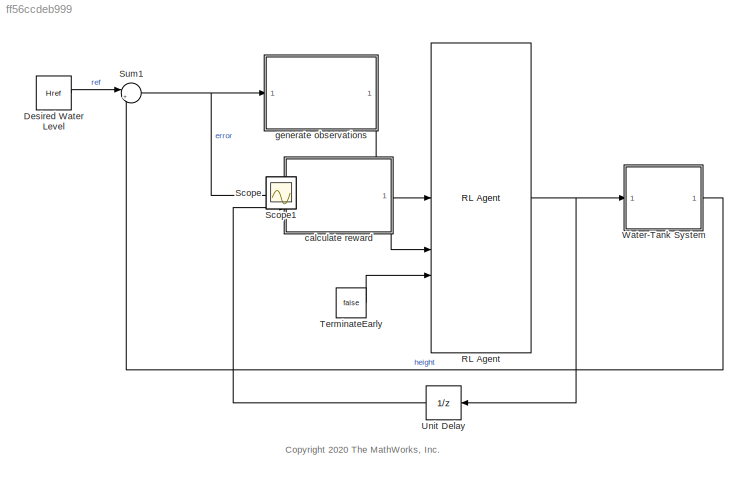
MODEL slx_ff56ccdeb999
KIND model
CONFIG AbsTol = auto
CONFIG EnableMultiTasking = on
CONFIG FixedStep = auto
CONFIG MaxStep = auto
CONFIG MinStep = auto
CONFIG RelTol = 1e-3
CONFIG SampleTimeConstraint = Unconstrained
CONFIG SolverName = ode45
CONFIG StartTime = 0.0
CONFIG StopTime = 200
BLOCK [Constant] Desired Water Level
  Value = Href
BLOCK [Reference] RL Agent  REF=rllib/RL Agent
  SourceBlock = rllib/RL Agent
  SourceType = RL Agent
BLOCK [Scope] Scope
  Floating = off
  IOType = viewer
  NumInputPorts = 1
  ScopeSpecificationString = Simulink.scopes.TimeScopeBlockCfg('CurrentConfiguration', extmgr.ConfigurationSet(extmgr.Configuration('Core','General UI',true),extmgr.Configuration('Core','Source UI',true),extmgr.Configuration('Sources','WiredSimulink',true),extmgr.Configuration('Visuals','Time Domain',true,'SerializedDisplays',{struct('MinYLimReal','0.26116','MaxYLimReal','2.71198','YLabelReal','','MinYLimMag','0.26116','MaxYL...<+1387ch>
BLOCK [Scope] Scope1
  Floating = off
  IOType = viewer
  NumInputPorts = 1
  ScopeSpecificationString = Simulink.scopes.TimeScopeBlockCfg('CurrentConfiguration', extmgr.ConfigurationSet(extmgr.Configuration('Core','General UI',true),extmgr.Configuration('Core','Source UI',true),extmgr.Configuration('Sources','WiredSimulink',true,'DataLoggingVariableName','ScopeData1'),extmgr.Configuration('Visuals','Time Domain',true,'SerializedDisplays',{struct('MinYLimReal','-10.00000','MaxYLimReal','10.00000','YL...<+1365ch>
BLOCK [Sum] Sum1
  Inputs = |+-
  SaturateOnIntegerOverflow = on
BLOCK [Constant] TerminateEarly
  Value = false
BLOCK [UnitDelay] Unit Delay
  HasFrameUpgradeWarning = on
  NameLocation = top
  SampleTime = -1
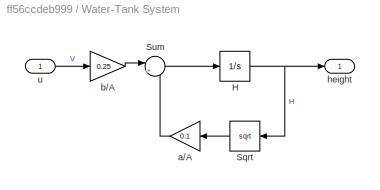
BLOCK [SubSystem] Water-Tank System
BLOCK [Integrator] Water-Tank System/H
  InitialCondition = 10.2886
  LimitOutput = on
  LowerSaturationLimit = 0
BLOCK [Sqrt] Water-Tank System/Sqrt
  NameLocation = top
  OutputSignalType = real
BLOCK [Sum] Water-Tank System/Sum
  Inputs = |+-
  SaturateOnIntegerOverflow = on
BLOCK [Gain] Water-Tank System/a//A
  Gain = 0.1
  OutDataTypeStr = Inherit: Same as input
  ParamDataTypeStr = Inherit: Same as input
  SaturateOnIntegerOverflow = on
BLOCK [Gain] Water-Tank System/b//A
  Gain = 0.25
  OutDataTypeStr = Inherit: Same as input
  ParamDataTypeStr = Inherit: Same as input
  SaturateOnIntegerOverflow = on
BLOCK [Outport] Water-Tank System/height
  VectorParamsAs1DForOutWhenUnconnected = off
BLOCK [Inport] Water-Tank System/u
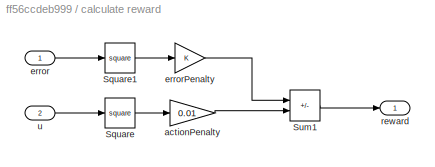
BLOCK [SubSystem] calculate reward
BLOCK [Math] calculate reward/Square
  Operator = square
BLOCK [Math] calculate reward/Square1
  Operator = square
BLOCK [Sum] calculate reward/Sum1
  IconShape = rectangular
  Inputs = --
  OutDataTypeStr = double
BLOCK [Gain] calculate reward/actionPenalty
  Gain = 0.01
BLOCK [Inport] calculate reward/error
BLOCK [Gain] calculate reward/errorPenalty
BLOCK [Outport] calculate reward/reward
  VectorParamsAs1DForOutWhenUnconnected = off
BLOCK [Inport] calculate reward/u
  Port = 2
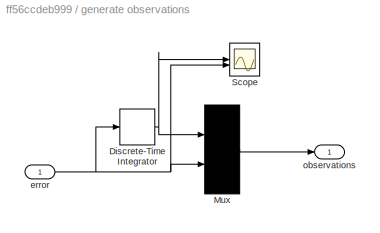
BLOCK [SubSystem] generate observations
BLOCK [DiscreteIntegrator] generate observations/Discrete-Time Integrator
  ICPrevOutput = DiscIntNeverNeededParam
  ICPrevScaledInput = DiscIntNeverNeededParam
  InitialConditionSetting = Auto
  SampleTime = Ts
BLOCK [Mux] generate observations/Mux
  DisplayOption = bar
  Inputs = 2
BLOCK [Scope] generate observations/Scope
  Floating = off
  NumInputPorts = 2
  ScopeSpecificationString = Simulink.scopes.TimeScopeBlockCfg('CurrentConfiguration', extmgr.ConfigurationSet(extmgr.Configuration('Core','General UI',true),extmgr.Configuration('Core','Source UI',true),extmgr.Configuration('Sources','WiredSimulink',true,'DataLoggingVariableName','ScopeData2'),extmgr.Configuration('Visuals','Time Domain',true,'SerializedDisplays',{struct('MinYLimReal','-2.63404','MaxYLimReal','11.10792','YLa...<+1423ch>
BLOCK [Inport] generate observations/error
BLOCK [Outport] generate observations/observations
  VectorParamsAs1DForOutWhenUnconnected = off
ANNOTATION (root): <copyright redacted>
LINE Desired Water Level:1 -> Sum1:1
NET RL Agent:1 -> Unit Delay:1, Water-Tank System:1
NET Sum1:1 -> calculate reward:1, generate observations:1
LINE TerminateEarly:1 -> RL Agent:3
LINE Unit Delay:1 -> calculate reward:2
NET Water-Tank System/H:1 -> Water-Tank System/Sqrt:1, Water-Tank System/height:1
LINE Water-Tank System/Sqrt:1 -> Water-Tank System/a//A:1
LINE Water-Tank System/Sum:1 -> Water-Tank System/H:1
LINE Water-Tank System/a//A:1 -> Water-Tank System/Sum:2
LINE Water-Tank System/b//A:1 -> Water-Tank System/Sum:1
LINE Water-Tank System/u:1 -> Water-Tank System/b//A:1
LINE Water-Tank System:1 -> Sum1:2
LINE calculate reward/Square1:1 -> calculate reward/errorPenalty:1
LINE calculate reward/Square:1 -> calculate reward/actionPenalty:1
LINE calculate reward/Sum1:1 -> calculate reward/reward:1
LINE calculate reward/actionPenalty:1 -> calculate reward/Sum1:2
LINE calculate reward/error:1 -> calculate reward/Square1:1
LINE calculate reward/errorPenalty:1 -> calculate reward/Sum1:1
LINE calculate reward/u:1 -> calculate reward/Square:1
LINE calculate reward:1 -> RL Agent:2
NET generate observations/Discrete-Time Integrator:1 -> generate observations/Mux:1, generate observations/Scope:1
LINE generate observations/Mux:1 -> generate observations/observations:1
NET generate observations/error:1 -> generate observations/Discrete-Time Integrator:1, generate observations/Mux:2, generate observations/Scope:2
LINE generate observations:1 -> RL Agent:1
note: NET lines group one-source signal fan-out (src -> all destinations, sorted); 1:1 wires keep LINE
